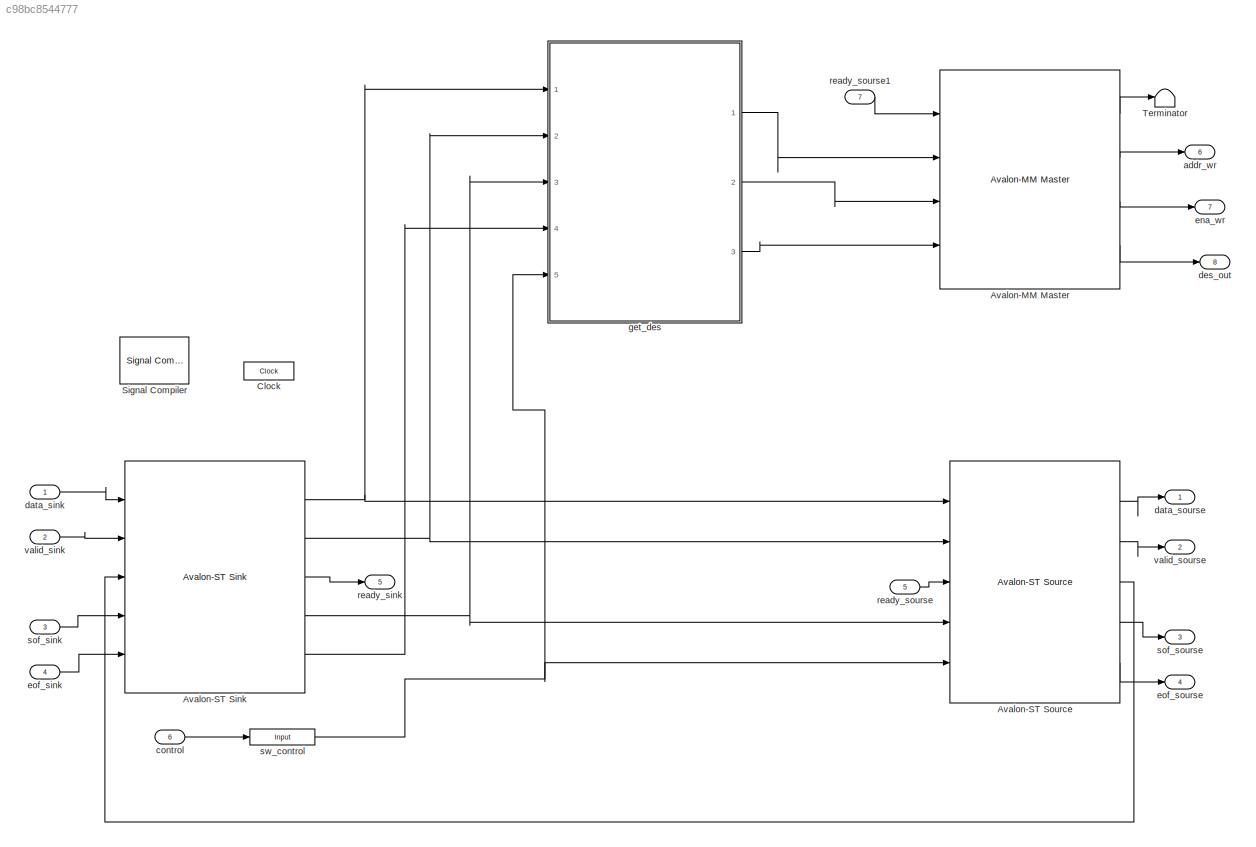
MODEL slx_c98bc8544777
KIND model
CONFIG AbsTol = auto
CONFIG FixedStep = auto
CONFIG InitFcn = %% DSPBuilder Start\nalt_dspbuilder_update_model(bdroot)\n%% DSPBuilder End\n
CONFIG MaxStep = auto
CONFIG MinStep = auto
CONFIG RelTol = 1e-3
CONFIG SampleTimeConstraint = Unconstrained
CONFIG Solver = ode45
CONFIG SolverMode = Auto
CONFIG SolverName = ode45
CONFIG StartTime = 0.0
CONFIG StopTime = 10.0
BLOCK [Reference] Avalon-MM Master  REF=allblocks_alteradspbuilder2/Avalon-MM Master
  BusType = Unsigned Integer
  PORTTYPE = Input
  Ports = [4, 4]
  SourceBlock = allblocks_alteradspbuilder2/Avalon-MM Master
  SourceType = Avalon-MM Master AlteraBlockset
  SpecifyClock = off
  addrType = Write
  addrWidth = 32
  burst = off
  bwl = 32
  bwr = 0
  byteEnable = off
  externalType = Inferred
  flowCtrl = off
  flush = off
  iofile = <userpath>\Desktop\final_sift_fpga\tb_get_descriptor\get%5Fdescriptor_Avalon-MM+Master_waitrequest.salt,<userpath>\Desktop\final_sift_fpga\tb_get_descriptor\get%5Fdescriptor_Avalon-MM+Master_address.capture,<userpath>\Desktop\final_sift_fpga\tb_get_descriptor\get%5Fdescriptor_Avalon-MM+Master_write.capture,<userpath>\Desktop\final_sift_fpga\tb_get_descriptor\get%5Fdescriptor_Avalon-MM+Master_write...<+13ch>
  irq = off
  irq_mode = Prioritized
  maxBurst = 4
  pipeline = off
BLOCK [Reference] Avalon-ST Sink  REF=allblocks_alteradspbuilder2/Avalon-ST Sink
  BusType = Unsigned Integer
  PORTTYPE = Output
  Ports = [5, 5]
  SourceBlock = allblocks_alteradspbuilder2/Avalon-ST Sink
  SourceType = Avalon-ST Sink AlteraBlockset
  SpecifyClock = off
  bwl = 24
  bwr = 0
  empty = off
  endOfPacket = on
  externalType = Inferred
  iofile = <userpath>\Desktop\final_sift_fpga\tb_get_descriptor\get%5Fdescriptor_Avalon-ST+Sink_data.salt,<userpath>\Desktop\final_sift_fpga\tb_get_descriptor\get%5Fdescriptor_Avalon-ST+Sink_valid.salt,<userpath>\Desktop\final_sift_fpga\tb_get_descriptor\get%5Fdescriptor_Avalon-ST+Sink_ready.capture,<userpath>\Desktop\final_sift_fpga\tb_get_descriptor\get%5Fdescriptor_Avalon-ST+Sink_startofpacket.salt,<userp...<+96ch>
  numOfChannels = 0
  numOfErrorDescriptors = 0
  readyLatency = 1
  startOfPacket = on
  symbolWidth = 8
  symbolsPerBeat = 3
BLOCK [Reference] Avalon-ST Source  REF=allblocks_alteradspbuilder2/Avalon-ST Source
  BusType = Unsigned Integer
  PORTTYPE = Input
  Ports = [5, 5]
  SourceBlock = allblocks_alteradspbuilder2/Avalon-ST Source
  SourceType = Avalon-ST Source AlteraBlockset
  SpecifyClock = off
  bwl = 24
  bwr = 0
  empty = off
  endOfPacket = on
  externalType = Inferred
  iofile = <userpath>\Desktop\final_sift_fpga\tb_get_descriptor\get%5Fdescriptor_Avalon-ST+Source_data.capture,<userpath>\Desktop\final_sift_fpga\tb_get_descriptor\get%5Fdescriptor_Avalon-ST+Source_valid.capture,<userpath>\Desktop\final_sift_fpga\tb_get_descriptor\get%5Fdescriptor_Avalon-ST+Source_ready.salt,<userpath>\Desktop\final_sift_fpga\tb_get_descriptor\get%5Fdescriptor_Avalon-ST+Source_startofpacket....<+115ch>
  numOfChannels = 0
  numOfErrorDescriptors = 0
  readyLatency = 1
  startOfPacket = on
  symbolWidth = 8
  symbolsPerBeat = 3
BLOCK [Reference] Clock  REF=allblocks_alteradspbuilder2/Clock
  ClockPeriod = 10/1.5
  ClockPeriodUnit = ns
  Export = off
  PhaseOffset = 0
  Ports = []
  Reset = aclr
  ResetLatency = 0
  ResetRegisterCascadeDepth = 0
  ResetType = Active Low
  SampleTime = 1
  SimulationStartCycle = 5
  SourceBlock = allblocks_alteradspbuilder2/Clock
  SourceType = BaseClock AlteraBlockset
BLOCK [Reference] Signal Compiler  REF=allblocks_alteradspbuilder2/Signal Compiler
  DeviceFamily = Cyclone IV GX
  DeviceName = AUTO
  DisableEarlyHDLGeneration = off
  EnableSignalTap = off
  ExportDir = <path>\quartus\dsp_builder
  MAX10_ProgrammingMode = Internal Flash (SDM) Single Boot
  Ports = []
  SignalTapDepth = 128
  SourceBlock = allblocks_alteradspbuilder2/Signal Compiler
  SourceType = Signal Compiler AlteraBlockset
  StpClock = Clock
  StpUseDefaultClock = on
  UseBoardBlock = off
BLOCK [Terminator] Terminator
BLOCK [Outport] addr_wr
  IconDisplay = Port number
  Port = 6
BLOCK [Inport] control
  IconDisplay = Port number
  Port = 6
BLOCK [Inport] data_sink
  IconDisplay = Port number
BLOCK [Outport] data_sourse
  IconDisplay = Port number
BLOCK [Outport] des_out
  IconDisplay = Port number
  Port = 8
BLOCK [Outport] ena_wr
  IconDisplay = Port number
  Port = 7
BLOCK [Inport] eof_sink
  IconDisplay = Port number
  Port = 4
BLOCK [Outport] eof_sourse
  IconDisplay = Port number
  Port = 4
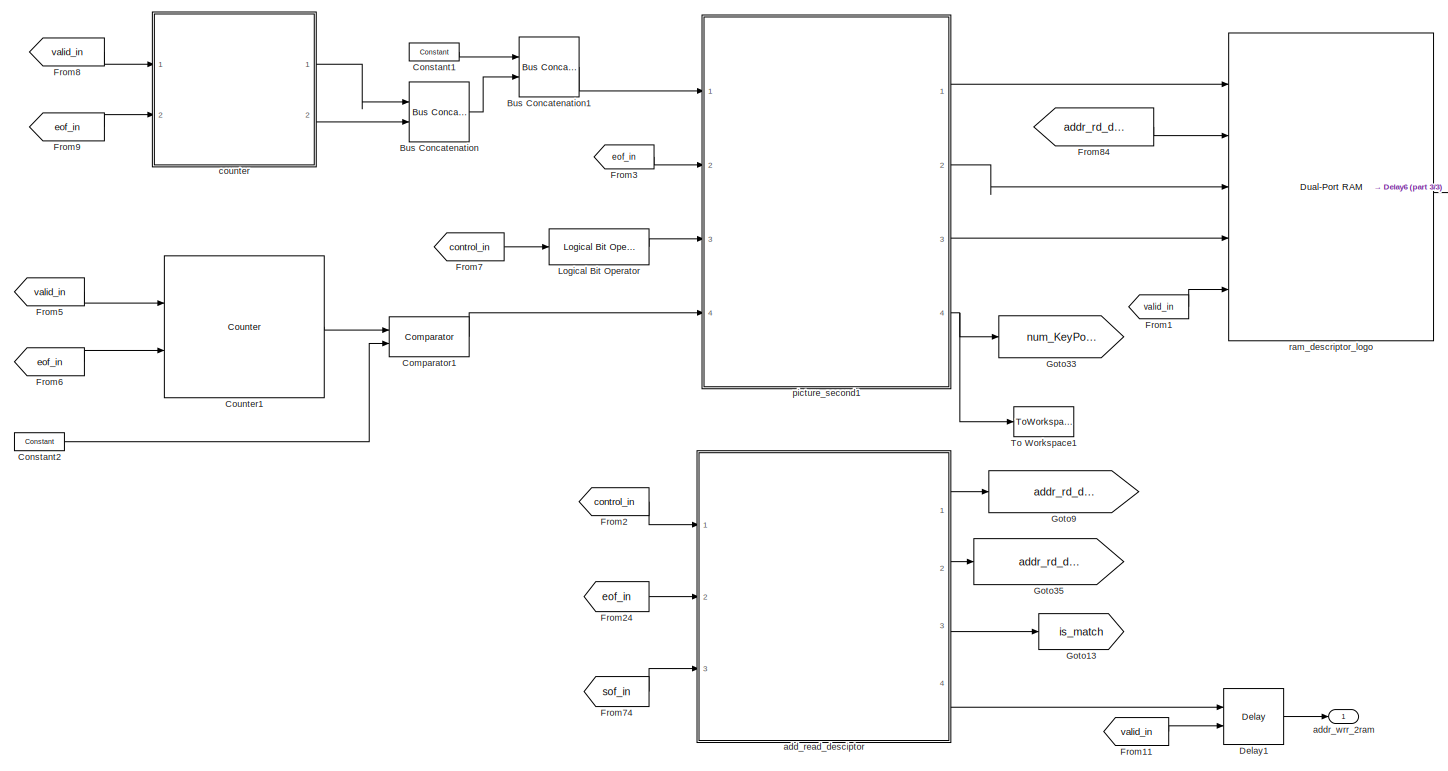
[diagram: get_des - part 1/3, center side, full height]
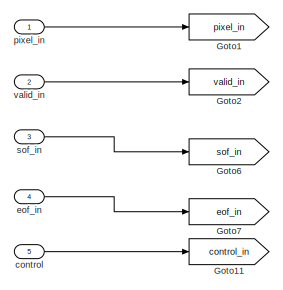
[diagram: get_des - part 2/3, top left region]
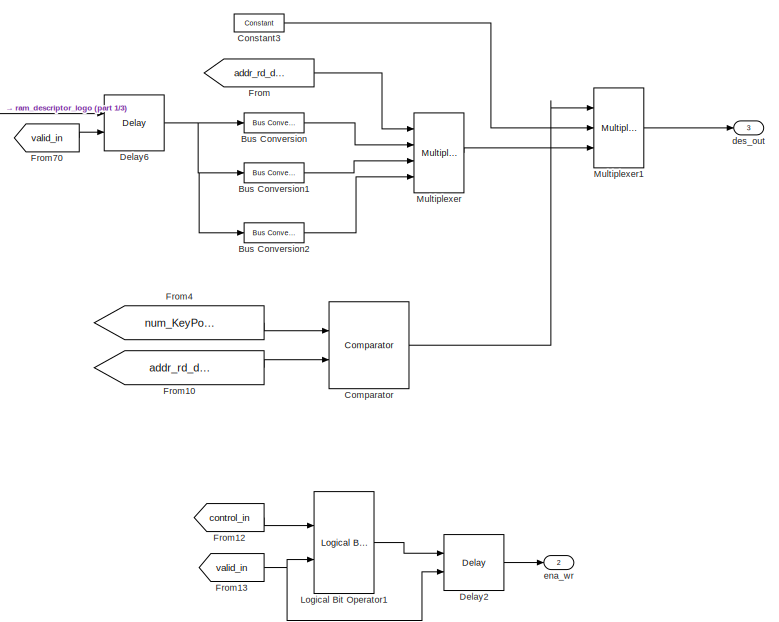
[diagram: get_des - part 3/3, right side, full height]
BLOCK [SubSystem] get_des
  Ports = [5, 3]
  RequestExecContextInheritance = off
BLOCK [Reference] get_des/Bus Concatenation  REF=allblocks_alteradspbuilder2/Bus Concatenation
  Ports = [2, 1]
  SourceBlock = allblocks_alteradspbuilder2/Bus Concatenation
  SourceType = Bus Concatenate AlteraBlockset
  awidth = 32
  bwidth = 32
  isSigned = off
  pipeline_display = 0
BLOCK [Reference] get_des/Bus Concatenation1  REF=allblocks_alteradspbuilder2/Bus Concatenation
  Ports = [2, 1]
  SourceBlock = allblocks_alteradspbuilder2/Bus Concatenation
  SourceType = Bus Concatenate AlteraBlockset
  awidth = 32
  bwidth = 64
  isSigned = off
  pipeline_display = 0
BLOCK [Reference] get_des/Bus Conversion  REF=allblocks_alteradspbuilder2/Bus Conversion
  BusType = Unsigned Integer
  Ports = [1, 1]
  SourceBlock = allblocks_alteradspbuilder2/Bus Conversion
  SourceType = Bus Conversion AlteraBlockset
  bitToConnectToOutputLSB = 64
  bwl = 32
  bwr = 1
  ibwl = 96
  ibwr = 1
  pipeline_display = 0
  round = off
  saturate = off
BLOCK [Reference] get_des/Bus Conversion1  REF=allblocks_alteradspbuilder2/Bus Conversion
  BusType = Unsigned Integer
  Ports = [1, 1]
  SourceBlock = allblocks_alteradspbuilder2/Bus Conversion
  SourceType = Bus Conversion AlteraBlockset
  bitToConnectToOutputLSB = 32
  bwl = 32
  bwr = 1
  ibwl = 96
  ibwr = 1
  pipeline_display = 0
  round = off
  saturate = off
BLOCK [Reference] get_des/Bus Conversion2  REF=allblocks_alteradspbuilder2/Bus Conversion
  BusType = Unsigned Integer
  Ports = [1, 1]
  SourceBlock = allblocks_alteradspbuilder2/Bus Conversion
  SourceType = Bus Conversion AlteraBlockset
  bitToConnectToOutputLSB = 0
  bwl = 32
  bwr = 1
  ibwl = 96
  ibwr = 1
  pipeline_display = 0
  round = off
  saturate = off
BLOCK [Reference] get_des/Comparator  REF=allblocks_alteradspbuilder2/Comparator
  Ports = [2, 1]
  SourceBlock = allblocks_alteradspbuilder2/Comparator
  SourceType = Comparator AlteraBlockset
  allowFloatingPointOverride = on
  direction = a >= b
  logFile = <userpath>\Desktop\final_sift_fpga\tb_get_descriptor\get%5Fdescriptor_get%5Fdes_Comparator.fixedpointlog
  logOutputs = off
  pipeline_display = 0
BLOCK [Reference] get_des/Comparator1  REF=allblocks_alteradspbuilder2/Comparator
  Ports = [2, 1]
  SourceBlock = allblocks_alteradspbuilder2/Comparator
  SourceType = Comparator AlteraBlockset
  allowFloatingPointOverride = on
  direction = a == b
  logFile = <userpath>\Desktop\final_sift_fpga\tb_get_descriptor\get%5Fdescriptor_get%5Fdes_Comparator1.fixedpointlog
  logOutputs = off
  pipeline_display = 0
BLOCK [Reference] get_des/Constant1  REF=allblocks_alteradspbuilder2/Constant
  BusType = Unsigned Integer
  Ports = [0, 1]
  SourceBlock = allblocks_alteradspbuilder2/Constant
  SourceType = Constant AlteraBlockset
  SpecifyClock = off
  allowFloatingPointOverride = on
  bwl = 32
  bwr = 0
  logFile = <userpath>\Desktop\final_sift_fpga\tb_get_descriptor\get%5Fdescriptor_get%5Fdes_Constant1.fixedpointlog
  logOutputs = off
  mask_cst = 1998
  roundMode = Truncate
  satMode = Wrap
BLOCK [Reference] get_des/Constant2  REF=allblocks_alteradspbuilder2/Constant
  BusType = Unsigned Integer
  Ports = [0, 1]
  SourceBlock = allblocks_alteradspbuilder2/Constant
  SourceType = Constant AlteraBlockset
  SpecifyClock = off
  allowFloatingPointOverride = on
  bwl = 20
  bwr = 0
  logFile = <userpath>\Desktop\final_sift_fpga\tb_get_descriptor\get%5Fdescriptor_get%5Fdes_Constant2.fixedpointlog
  logOutputs = off
  mask_cst = 9999
  roundMode = Truncate
  satMode = Wrap
BLOCK [Reference] get_des/Constant3  REF=allblocks_alteradspbuilder2/Constant
  BusType = Unsigned Integer
  Ports = [0, 1]
  SourceBlock = allblocks_alteradspbuilder2/Constant
  SourceType = Constant AlteraBlockset
  SpecifyClock = off
  allowFloatingPointOverride = on
  bwl = 32
  bwr = 0
  logFile = <userpath>\Desktop\final_sift_fpga\tb_get_descriptor\get%5Fdescriptor_get%5Fdes_Constant3.fixedpointlog
  logOutputs = off
  mask_cst = 0
  roundMode = Truncate
  satMode = Wrap
BLOCK [Reference] get_des/Counter1  REF=allblocks_alteradspbuilder2/Counter
  BusType = Unsigned Integer
  Ports = [2, 1]
  SourceBlock = allblocks_alteradspbuilder2/Counter
  SourceType = Counter AlteraBlockset
  SpecifyClock = off
  bwl = 20
  bwr = 0
  direction = Increment
  modulo = 10000
  pipeline_display = 1
  svalue = 1
  use_clk_ena = off
  use_ena = on
  use_modulo = on
  use_sclr = on
  use_sload = off
  use_sset = off
BLOCK [Reference] get_des/Delay1  REF=allblocks_alteradspbuilder2/Delay
  ClockPhase = 1
  Ports = [2, 1]
  SourceBlock = allblocks_alteradspbuilder2/Delay
  SourceType = Delay AlteraBlockset
  allowFloatingPointOverride = on
  logFile = <userpath>\Desktop\final_sift_fpga\tb_get_descriptor\get%5Fdescriptor_get%5Fdes_Delay1.fixedpointlog
  logOutputs = off
  pipeline = 3
  pipeline_display = 3
  reset_value = 1
  use_ena = on
  use_init = off
  use_sclr = off
BLOCK [Reference] get_des/Delay2  REF=allblocks_alteradspbuilder2/Delay
  ClockPhase = 1
  Ports = [2, 1]
  SourceBlock = allblocks_alteradspbuilder2/Delay
  SourceType = Delay AlteraBlockset
  allowFloatingPointOverride = on
  logFile = <userpath>\Desktop\final_sift_fpga\tb_get_descriptor\get%5Fdescriptor_get%5Fdes_Delay2.fixedpointlog
  logOutputs = off
  pipeline = 3
  pipeline_display = 3
  reset_value = 1
  use_ena = on
  use_init = off
  use_sclr = off
BLOCK [Reference] get_des/Delay6  REF=allblocks_alteradspbuilder2/Delay
  ClockPhase = 1
  Ports = [2, 1]
  SourceBlock = allblocks_alteradspbuilder2/Delay
  SourceType = Delay AlteraBlockset
  allowFloatingPointOverride = on
  logFile = <userpath>\Desktop\final_sift_fpga\tb_get_descriptor\get%5Fdescriptor_get%5Fdes_Delay6.fixedpointlog
  logOutputs = off
  pipeline = 1
  pipeline_display = 1
  reset_value = 1
  use_ena = on
  use_init = off
  use_sclr = off
BLOCK [From] get_des/From
  GotoTag = addr_rd_des_logo
BLOCK [From] get_des/From1
  GotoTag = valid_in
BLOCK [From] get_des/From10
  GotoTag = addr_rd_des
BLOCK [From] get_des/From11
  GotoTag = valid_in
BLOCK [From] get_des/From12
  GotoTag = control_in
BLOCK [From] get_des/From13
  GotoTag = valid_in
BLOCK [From] get_des/From2
  GotoTag = control_in
BLOCK [From] get_des/From24
  GotoTag = eof_in
BLOCK [From] get_des/From3
  GotoTag = eof_in
BLOCK [From] get_des/From4
  GotoTag = num_KeyPoint_logo
BLOCK [From] get_des/From5
  GotoTag = valid_in
BLOCK [From] get_des/From6
  GotoTag = eof_in
BLOCK [From] get_des/From7
  GotoTag = control_in
BLOCK [From] get_des/From70
  GotoTag = valid_in
BLOCK [From] get_des/From74
  GotoTag = sof_in
BLOCK [From] get_des/From8
  GotoTag = valid_in
BLOCK [From] get_des/From84
  GotoTag = addr_rd_des
BLOCK [From] get_des/From9
  GotoTag = eof_in
BLOCK [Goto] get_des/Goto1
  GotoTag = pixel_in
BLOCK [Goto] get_des/Goto11
  GotoTag = control_in
BLOCK [Goto] get_des/Goto13
  GotoTag = is_match
BLOCK [Goto] get_des/Goto2
  GotoTag = valid_in
BLOCK [Goto] get_des/Goto33
  GotoTag = num_KeyPoint_logo
BLOCK [Goto] get_des/Goto35
  GotoTag = addr_rd_des_logo
BLOCK [Goto] get_des/Goto6
  GotoTag = sof_in
BLOCK [Goto] get_des/Goto7
  GotoTag = eof_in
BLOCK [Goto] get_des/Goto9
  GotoTag = addr_rd_des
BLOCK [Reference] get_des/Logical Bit Operator  REF=allblocks_alteradspbuilder2/Logical Bit Operator
  LogicalOperator = NOT
  Ports = [1, 1]
  SourceBlock = allblocks_alteradspbuilder2/Logical Bit Operator
  SourceType = Logical Bit Operator AlteraBlockset
  pipeline_display = 0
  user_inputs = 2
BLOCK [Reference] get_des/Logical Bit Operator1  REF=allblocks_alteradspbuilder2/Logical Bit Operator
  LogicalOperator = AND
  Ports = [2, 1]
  SourceBlock = allblocks_alteradspbuilder2/Logical Bit Operator
  SourceType = Logical Bit Operator AlteraBlockset
  pipeline_display = 0
  user_inputs = 2
BLOCK [Reference] get_des/Multiplexer  REF=allblocks_alteradspbuilder2/Multiplexer
  Ports = [4, 1]
  SourceBlock = allblocks_alteradspbuilder2/Multiplexer
  SourceType = Multiplexer AlteraBlockset
  allowFloatingPointOverride = on
  logFile = <userpath>\Desktop\final_sift_fpga\tb_get_descriptor\get%5Fdescriptor_get%5Fdes_Multiplexer.fixedpointlog
  logOutputs = off
  numInputs = 3
  oneHot = off
  pipeline = 0
  pipeline_display = 0
  use_aclr = off
  use_ena = off
BLOCK [Reference] get_des/Multiplexer1  REF=allblocks_alteradspbuilder2/Multiplexer
  Ports = [3, 1]
  SourceBlock = allblocks_alteradspbuilder2/Multiplexer
  SourceType = Multiplexer AlteraBlockset
  allowFloatingPointOverride = on
  logFile = <userpath>\Desktop\final_sift_fpga\tb_get_descriptor\get%5Fdescriptor_get%5Fdes_Multiplexer1.fixedpointlog
  logOutputs = off
  numInputs = 2
  oneHot = off
  pipeline = 0
  pipeline_display = 0
  use_aclr = off
  use_ena = off
BLOCK [ToWorkspace] get_des/To Workspace1
  FixptAsFi = on
  MaxDataPoints = inf
  Ports = [1]
  SampleTime = -1
  Save2DSignal = 3-D array (concatenate along third dimension)
  SaveFormat = Timeseries
  VariableName = num_keypoint
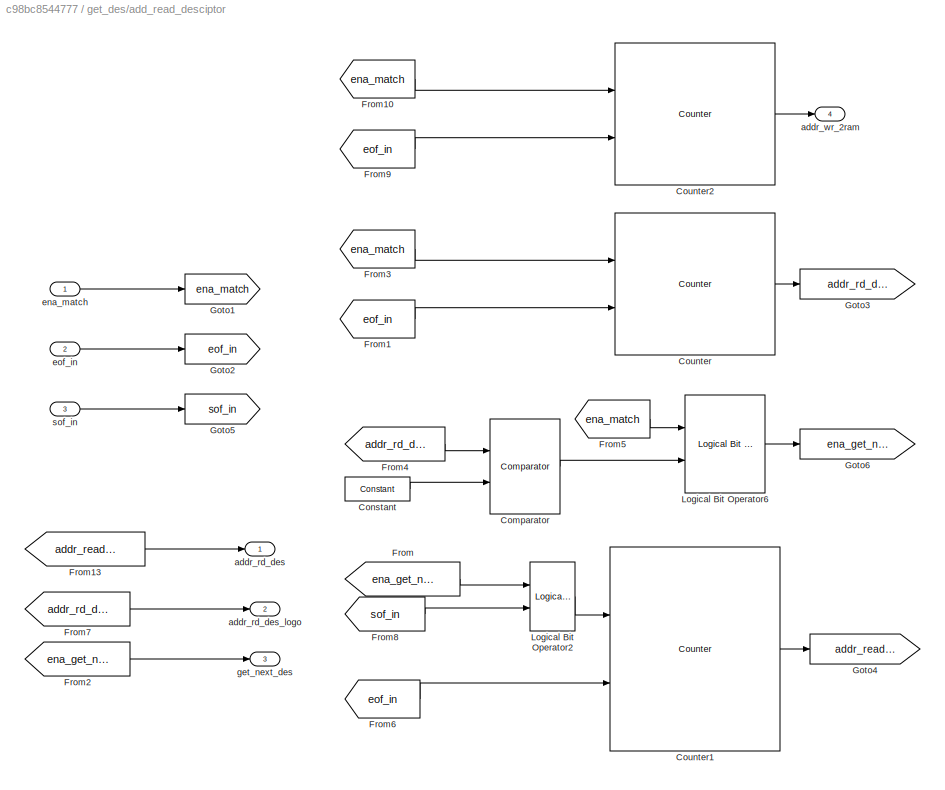
BLOCK [SubSystem] get_des/add_read_desciptor
  Ports = [3, 4]
  RequestExecContextInheritance = off
BLOCK [Reference] get_des/add_read_desciptor/Comparator  REF=allblocks_alteradspbuilder2/Comparator
  Ports = [2, 1]
  SourceBlock = allblocks_alteradspbuilder2/Comparator
  SourceType = Comparator AlteraBlockset
  allowFloatingPointOverride = on
  direction = a == b
  logFile = <userpath>\Desktop\final_sift_fpga\tb_get_descriptor\get%5Fdescriptor_get%5Fdes_add%5Fread%5Fdesciptor_Comparator.fixedpointlog
  logOutputs = off
  pipeline_display = 0
BLOCK [Reference] get_des/add_read_desciptor/Constant  REF=allblocks_alteradspbuilder2/Constant
  BusType = Unsigned Integer
  Ports = [0, 1]
  SourceBlock = allblocks_alteradspbuilder2/Constant
  SourceType = Constant AlteraBlockset
  SpecifyClock = off
  allowFloatingPointOverride = on
  bwl = 2
  bwr = 0
  logFile = <userpath>\Desktop\final_sift_fpga\tb_get_descriptor\get%5Fdescriptor_get%5Fdes_add%5Fread%5Fdesciptor_Constant.fixedpointlog
  logOutputs = off
  mask_cst = 2
  roundMode = Truncate
  satMode = Wrap
BLOCK [Reference] get_des/add_read_desciptor/Counter  REF=allblocks_alteradspbuilder2/Counter
  BusType = Unsigned Integer
  Ports = [2, 1]
  SourceBlock = allblocks_alteradspbuilder2/Counter
  SourceType = Counter AlteraBlockset
  SpecifyClock = off
  bwl = 2
  bwr = 0
  direction = Increment
  modulo = 3
  pipeline_display = 1
  svalue = 1
  use_clk_ena = off
  use_ena = on
  use_modulo = on
  use_sclr = on
  use_sload = off
  use_sset = off
BLOCK [Reference] get_des/add_read_desciptor/Counter1  REF=allblocks_alteradspbuilder2/Counter
  BusType = Unsigned Integer
  Ports = [2, 1]
  SourceBlock = allblocks_alteradspbuilder2/Counter
  SourceType = Counter AlteraBlockset
  SpecifyClock = off
  bwl = 7
  bwr = 0
  direction = Increment
  modulo = 100
  pipeline_display = 1
  svalue = 0
  use_clk_ena = off
  use_ena = on
  use_modulo = on
  use_sclr = on
  use_sload = off
  use_sset = off
BLOCK [Reference] get_des/add_read_desciptor/Counter2  REF=allblocks_alteradspbuilder2/Counter
  BusType = Unsigned Integer
  Ports = [2, 1]
  SourceBlock = allblocks_alteradspbuilder2/Counter
  SourceType = Counter AlteraBlockset
  SpecifyClock = off
  bwl = 9
  bwr = 0
  direction = Increment
  modulo = 300
  pipeline_display = 1
  svalue = 1
  use_clk_ena = off
  use_ena = on
  use_modulo = on
  use_sclr = on
  use_sload = off
  use_sset = off
BLOCK [From] get_des/add_read_desciptor/From
  GotoTag = ena_get_next_addr
BLOCK [From] get_des/add_read_desciptor/From1
  GotoTag = eof_in
BLOCK [From] get_des/add_read_desciptor/From10
  GotoTag = ena_match
BLOCK [From] get_des/add_read_desciptor/From13
  GotoTag = addr_read_des
BLOCK [From] get_des/add_read_desciptor/From2
  GotoTag = ena_get_next_addr
BLOCK [From] get_des/add_read_desciptor/From3
  GotoTag = ena_match
BLOCK [From] get_des/add_read_desciptor/From4
  GotoTag = addr_rd_des_logo
BLOCK [From] get_des/add_read_desciptor/From5
  GotoTag = ena_match
BLOCK [From] get_des/add_read_desciptor/From6
  GotoTag = eof_in
BLOCK [From] get_des/add_read_desciptor/From7
  GotoTag = addr_rd_des_logo
BLOCK [From] get_des/add_read_desciptor/From8
  GotoTag = sof_in
BLOCK [From] get_des/add_read_desciptor/From9
  GotoTag = eof_in
BLOCK [Goto] get_des/add_read_desciptor/Goto1
  GotoTag = ena_match
BLOCK [Goto] get_des/add_read_desciptor/Goto2
  GotoTag = eof_in
BLOCK [Goto] get_des/add_read_desciptor/Goto3
  GotoTag = addr_rd_des_logo
BLOCK [Goto] get_des/add_read_desciptor/Goto4
  GotoTag = addr_read_des
BLOCK [Goto] get_des/add_read_desciptor/Goto5
  GotoTag = sof_in
BLOCK [Goto] get_des/add_read_desciptor/Goto6
  GotoTag = ena_get_next_addr
BLOCK [Reference] get_des/add_read_desciptor/Logical Bit Operator2  REF=allblocks_alteradspbuilder2/Logical Bit Operator
  LogicalOperator = OR
  Ports = [2, 1]
  SourceBlock = allblocks_alteradspbuilder2/Logical Bit Operator
  SourceType = Logical Bit Operator AlteraBlockset
  pipeline_display = 0
  user_inputs = 2
BLOCK [Reference] get_des/add_read_desciptor/Logical Bit Operator6  REF=allblocks_alteradspbuilder2/Logical Bit Operator
  LogicalOperator = AND
  Ports = [2, 1]
  SourceBlock = allblocks_alteradspbuilder2/Logical Bit Operator
  SourceType = Logical Bit Operator AlteraBlockset
  pipeline_display = 0
  user_inputs = 2
BLOCK [Outport] get_des/add_read_desciptor/addr_rd_des
  IconDisplay = Port number
BLOCK [Outport] get_des/add_read_desciptor/addr_rd_des_logo
  IconDisplay = Port number
  Port = 2
BLOCK [Outport] get_des/add_read_desciptor/addr_wr_2ram
  IconDisplay = Port number
  Port = 4
BLOCK [Inport] get_des/add_read_desciptor/ena_match
  IconDisplay = Port number
BLOCK [Inport] get_des/add_read_desciptor/eof_in
  IconDisplay = Port number
  Port = 2
BLOCK [Outport] get_des/add_read_desciptor/get_next_des
  IconDisplay = Port number
  Port = 3
BLOCK [Inport] get_des/add_read_desciptor/sof_in
  IconDisplay = Port number
  Port = 3
BLOCK [Outport] get_des/addr_wrr_2ram
  IconDisplay = Port number
BLOCK [Inport] get_des/control
  IconDisplay = Port number
  Port = 5
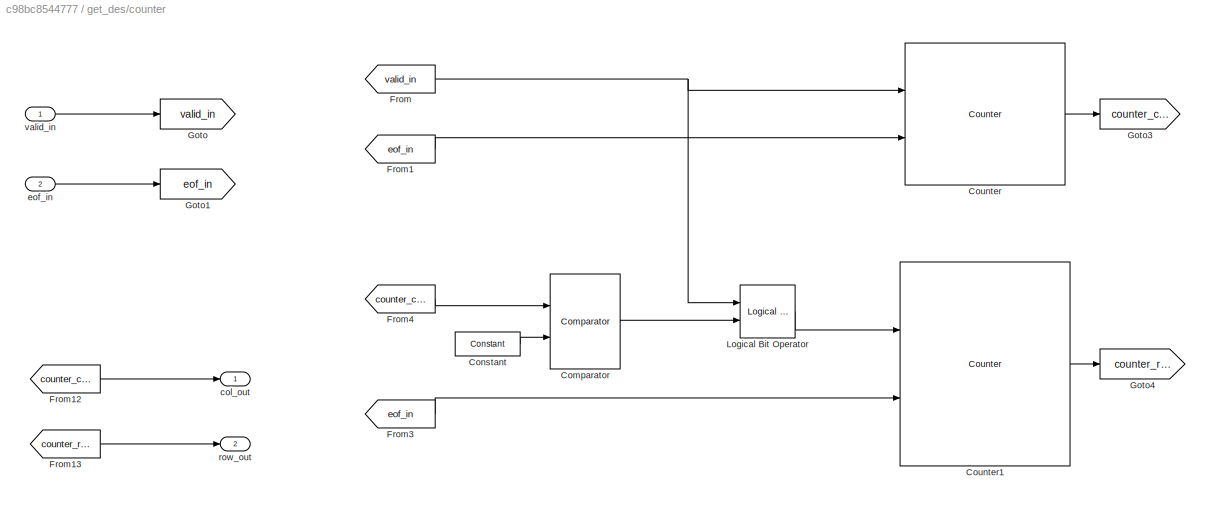
BLOCK [SubSystem] get_des/counter
  Ports = [2, 2]
  RequestExecContextInheritance = off
BLOCK [Reference] get_des/counter/Comparator  REF=allblocks_alteradspbuilder2/Comparator
  Ports = [2, 1]
  SourceBlock = allblocks_alteradspbuilder2/Comparator
  SourceType = Comparator AlteraBlockset
  allowFloatingPointOverride = on
  direction = a == b
  logFile = <userpath>\Desktop\final_sift_fpga\tb_get_descriptor\get%5Fdescriptor_get%5Fdes_counter_Comparator.fixedpointlog
  logOutputs = off
  pipeline_display = 0
BLOCK [Reference] get_des/counter/Constant  REF=allblocks_alteradspbuilder2/Constant
  BusType = Unsigned Integer
  Ports = [0, 1]
  SourceBlock = allblocks_alteradspbuilder2/Constant
  SourceType = Constant AlteraBlockset
  SpecifyClock = off
  allowFloatingPointOverride = on
  bwl = 10
  bwr = 0
  logFile = <userpath>\Desktop\final_sift_fpga\tb_get_descriptor\get%5Fdescriptor_get%5Fdes_counter_Constant.fixedpointlog
  logOutputs = off
  mask_cst = 639
  roundMode = Truncate
  satMode = Wrap
BLOCK [Reference] get_des/counter/Counter  REF=allblocks_alteradspbuilder2/Counter
  BusType = Unsigned Integer
  Ports = [2, 1]
  SourceBlock = allblocks_alteradspbuilder2/Counter
  SourceType = Counter AlteraBlockset
  SpecifyClock = off
  bwl = 10
  bwr = 0
  direction = Increment
  modulo = 640
  pipeline_display = 1
  svalue = 1
  use_clk_ena = off
  use_ena = on
  use_modulo = on
  use_sclr = on
  use_sload = off
  use_sset = off
BLOCK [Reference] get_des/counter/Counter1  REF=allblocks_alteradspbuilder2/Counter
  BusType = Unsigned Integer
  Ports = [2, 1]
  SourceBlock = allblocks_alteradspbuilder2/Counter
  SourceType = Counter AlteraBlockset
  SpecifyClock = off
  bwl = 10
  bwr = 0
  direction = Increment
  modulo = 480
  pipeline_display = 1
  svalue = 0
  use_clk_ena = off
  use_ena = on
  use_modulo = on
  use_sclr = on
  use_sload = off
  use_sset = off
BLOCK [From] get_des/counter/From
  GotoTag = valid_in
BLOCK [From] get_des/counter/From1
  GotoTag = eof_in
BLOCK [From] get_des/counter/From12
  GotoTag = counter_col
BLOCK [From] get_des/counter/From13
  GotoTag = counter_row
BLOCK [From] get_des/counter/From3
  GotoTag = eof_in
BLOCK [From] get_des/counter/From4
  GotoTag = counter_col
BLOCK [Goto] get_des/counter/Goto
  GotoTag = valid_in
BLOCK [Goto] get_des/counter/Goto1
  GotoTag = eof_in
BLOCK [Goto] get_des/counter/Goto3
  GotoTag = counter_col
BLOCK [Goto] get_des/counter/Goto4
  GotoTag = counter_row
BLOCK [Reference] get_des/counter/Logical Bit Operator  REF=allblocks_alteradspbuilder2/Logical Bit Operator
  LogicalOperator = AND
  Ports = [2, 1]
  SourceBlock = allblocks_alteradspbuilder2/Logical Bit Operator
  SourceType = Logical Bit Operator AlteraBlockset
  pipeline_display = 0
  user_inputs = 2
BLOCK [Outport] get_des/counter/col_out
  IconDisplay = Port number
BLOCK [Inport] get_des/counter/eof_in
  IconDisplay = Port number
  Port = 2
BLOCK [Outport] get_des/counter/row_out
  IconDisplay = Port number
  Port = 2
BLOCK [Inport] get_des/counter/valid_in
  IconDisplay = Port number
BLOCK [Outport] get_des/des_out
  IconDisplay = Port number
  Port = 3
BLOCK [Outport] get_des/ena_wr
  IconDisplay = Port number
  Port = 2
BLOCK [Inport] get_des/eof_in
  IconDisplay = Port number
  Port = 4
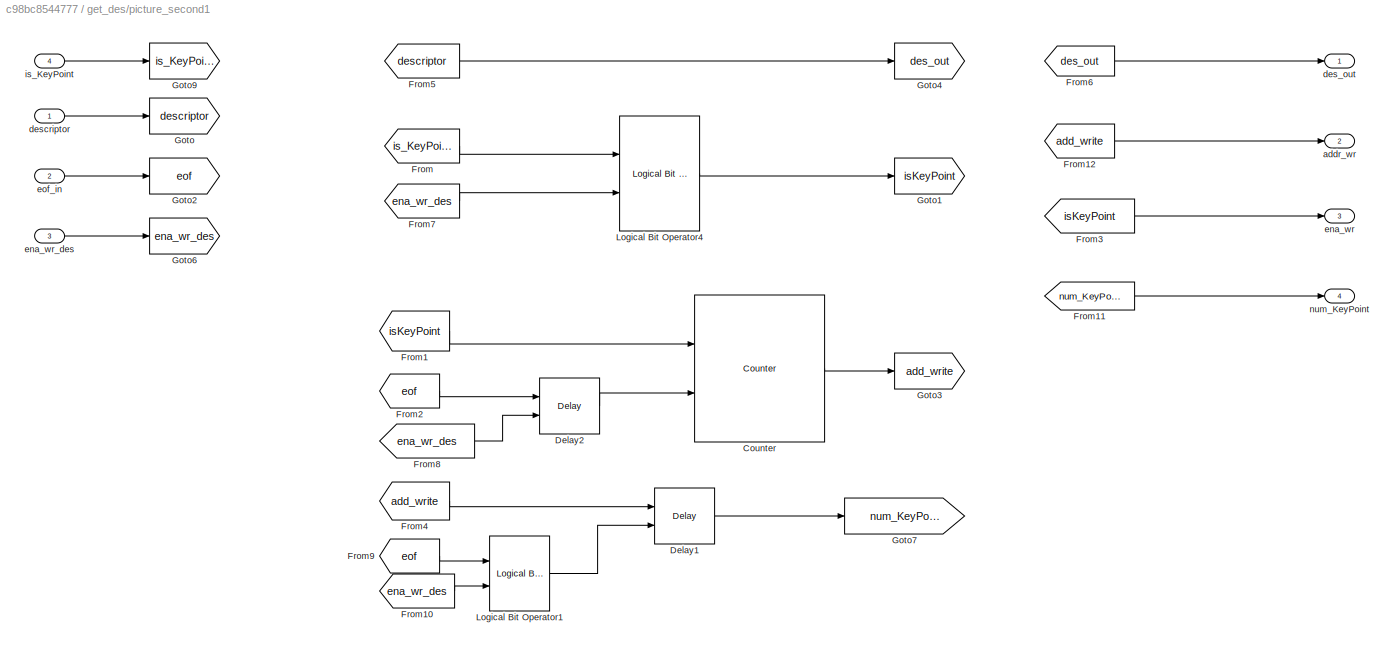
BLOCK [SubSystem] get_des/picture_second1
  Ports = [4, 4]
  RequestExecContextInheritance = off
BLOCK [Reference] get_des/picture_second1/Counter  REF=allblocks_alteradspbuilder2/Counter
  BusType = Unsigned Integer
  Ports = [2, 1]
  SourceBlock = allblocks_alteradspbuilder2/Counter
  SourceType = Counter AlteraBlockset
  SpecifyClock = off
  bwl = 7
  bwr = 0
  direction = Increment
  modulo = 100
  pipeline_display = 1
  svalue = 1
  use_clk_ena = off
  use_ena = on
  use_modulo = on
  use_sclr = on
  use_sload = off
  use_sset = off
BLOCK [Reference] get_des/picture_second1/Delay1  REF=allblocks_alteradspbuilder2/Delay
  ClockPhase = 1
  Ports = [2, 1]
  SourceBlock = allblocks_alteradspbuilder2/Delay
  SourceType = Delay AlteraBlockset
  allowFloatingPointOverride = on
  logFile = <userpath>\Desktop\final_sift_fpga\tb_get_descriptor\get%5Fdescriptor_get%5Fdes_picture%5Fsecond1_Delay1.fixedpointlog
  logOutputs = off
  pipeline = 1
  pipeline_display = 1
  reset_value = 1
  use_ena = on
  use_init = off
  use_sclr = off
BLOCK [Reference] get_des/picture_second1/Delay2  REF=allblocks_alteradspbuilder2/Delay
  ClockPhase = 1
  Ports = [2, 1]
  SourceBlock = allblocks_alteradspbuilder2/Delay
  SourceType = Delay AlteraBlockset
  allowFloatingPointOverride = on
  logFile = <userpath>\Desktop\final_sift_fpga\tb_get_descriptor\get%5Fdescriptor_get%5Fdes_picture%5Fsecond1_Delay2.fixedpointlog
  logOutputs = off
  pipeline = 5
  pipeline_display = 5
  reset_value = 1
  use_ena = on
  use_init = off
  use_sclr = off
BLOCK [From] get_des/picture_second1/From
  GotoTag = is_KeyPoint
BLOCK [From] get_des/picture_second1/From1
  GotoTag = isKeyPoint
BLOCK [From] get_des/picture_second1/From10
  GotoTag = ena_wr_des
BLOCK [From] get_des/picture_second1/From11
  GotoTag = num_KeyPoint
BLOCK [From] get_des/picture_second1/From12
  GotoTag = add_write
BLOCK [From] get_des/picture_second1/From2
  GotoTag = eof
BLOCK [From] get_des/picture_second1/From3
  GotoTag = isKeyPoint
BLOCK [From] get_des/picture_second1/From4
  GotoTag = add_write
BLOCK [From] get_des/picture_second1/From5
  GotoTag = descriptor
BLOCK [From] get_des/picture_second1/From6
  GotoTag = des_out
BLOCK [From] get_des/picture_second1/From7
  GotoTag = ena_wr_des
BLOCK [From] get_des/picture_second1/From8
  GotoTag = ena_wr_des
BLOCK [From] get_des/picture_second1/From9
  GotoTag = eof
BLOCK [Goto] get_des/picture_second1/Goto
  GotoTag = descriptor
BLOCK [Goto] get_des/picture_second1/Goto1
  GotoTag = isKeyPoint
BLOCK [Goto] get_des/picture_second1/Goto2
  GotoTag = eof
BLOCK [Goto] get_des/picture_second1/Goto3
  GotoTag = add_write
BLOCK [Goto] get_des/picture_second1/Goto4
  GotoTag = des_out
BLOCK [Goto] get_des/picture_second1/Goto6
  GotoTag = ena_wr_des
BLOCK [Goto] get_des/picture_second1/Goto7
  GotoTag = num_KeyPoint
BLOCK [Goto] get_des/picture_second1/Goto9
  GotoTag = is_KeyPoint
BLOCK [Reference] get_des/picture_second1/Logical Bit Operator1  REF=allblocks_alteradspbuilder2/Logical Bit Operator
  LogicalOperator = AND
  Ports = [2, 1]
  SourceBlock = allblocks_alteradspbuilder2/Logical Bit Operator
  SourceType = Logical Bit Operator AlteraBlockset
  pipeline_display = 0
  user_inputs = 2
BLOCK [Reference] get_des/picture_second1/Logical Bit Operator4  REF=allblocks_alteradspbuilder2/Logical Bit Operator
  LogicalOperator = AND
  Ports = [2, 1]
  SourceBlock = allblocks_alteradspbuilder2/Logical Bit Operator
  SourceType = Logical Bit Operator AlteraBlockset
  pipeline_display = 0
  user_inputs = 2
BLOCK [Outport] get_des/picture_second1/addr_wr
  IconDisplay = Port number
  Port = 2
BLOCK [Outport] get_des/picture_second1/des_out
  IconDisplay = Port number
BLOCK [Inport] get_des/picture_second1/descriptor
  IconDisplay = Port number
BLOCK [Outport] get_des/picture_second1/ena_wr
  IconDisplay = Port number
  Port = 3
BLOCK [Inport] get_des/picture_second1/ena_wr_des
  IconDisplay = Port number
  Port = 3
BLOCK [Inport] get_des/picture_second1/eof_in
  IconDisplay = Port number
  Port = 2
BLOCK [Inport] get_des/picture_second1/is_KeyPoint
  IconDisplay = Port number
  Port = 4
BLOCK [Outport] get_des/picture_second1/num_KeyPoint
  IconDisplay = Port number
  Port = 4
BLOCK [Inport] get_des/pixel_in
  IconDisplay = Port number
BLOCK [Reference] get_des/ram_descriptor_logo  REF=allblocks_alteradspbuilder2/Dual-Port RAM
  BusType = Unsigned Integer
  ClockPhase = 1
  Ports = [5, 1]
  SourceBlock = allblocks_alteradspbuilder2/Dual-Port RAM
  SourceType = Dual-Port RAM AlteraBlockset
  allowFloatingPointOverride = on
  bwl = 96
  bwr = 0
  dont_care = on
  init_array = [0:1:15]
  init_file = input.hex
  initialization = Blank
  logFile = <userpath>\Desktop\final_sift_fpga\tb_get_descriptor\get%5Fdescriptor_get%5Fdes_ram%5Fdescriptor%5Flogo.fixedpointlog
  logOutputs = off
  memory_type = AUTO
  numwords = 100
  pipeline_display = 2
  ram_type = DualRAM
  register_outputs = on
  use_ena = on
BLOCK [Inport] get_des/sof_in
  IconDisplay = Port number
  Port = 3
BLOCK [Inport] get_des/valid_in
  IconDisplay = Port number
  Port = 2
BLOCK [Outport] ready_sink
  IconDisplay = Port number
  Port = 5
BLOCK [Inport] ready_sourse
  IconDisplay = Port number
  Port = 5
BLOCK [Inport] ready_sourse1
  IconDisplay = Port number
  Port = 7
BLOCK [Inport] sof_sink
  IconDisplay = Port number
  Port = 3
BLOCK [Outport] sof_sourse
  IconDisplay = Port number
  Port = 3
BLOCK [Reference] sw_control  REF=allblocks_alteradspbuilder2/Input
  BusType = Unsigned Integer
  PORTTYPE = Input
  Ports = [1, 1]
  SourceBlock = allblocks_alteradspbuilder2/Input
  SourceType = Input AlteraBlockset
  SpecifyClock = off
  allowFloatingPointOverride = on
  bwl = 18
  bwr = 0
  externalType = Inferred
  iofile = <userpath>\Desktop\final_sift_fpga\tb_get_descriptor\get%5Fdescriptor_sw%5Fcontrol.salt
  logOutputs = off
BLOCK [Inport] valid_sink
  IconDisplay = Port number
  Port = 2
BLOCK [Outport] valid_sourse
  IconDisplay = Port number
  Port = 2
LINE Avalon-MM Master:1 -> Terminator:1
LINE Avalon-MM Master:2 -> addr_wr:1
LINE Avalon-MM Master:3 -> ena_wr:1
LINE Avalon-MM Master:4 -> des_out:1
NET Avalon-ST Sink:1 -> Avalon-ST Source:1, get_des:1
NET Avalon-ST Sink:2 -> Avalon-ST Source:2, get_des:2
LINE Avalon-ST Sink:3 -> ready_sink:1
NET Avalon-ST Sink:4 -> Avalon-ST Source:4, get_des:3
LINE Avalon-ST Sink:5 -> get_des:4
LINE Avalon-ST Source:1 -> data_sourse:1
LINE Avalon-ST Source:2 -> valid_sourse:1
LINE Avalon-ST Source:3 -> Avalon-ST Sink:3
LINE Avalon-ST Source:4 -> sof_sourse:1
LINE Avalon-ST Source:5 -> eof_sourse:1
LINE control:1 -> sw_control:1
LINE data_sink:1 -> Avalon-ST Sink:1
LINE eof_sink:1 -> Avalon-ST Sink:5
LINE get_des/Bus Concatenation1:1 -> get_des/picture_second1:1
LINE get_des/Bus Concatenation:1 -> get_des/Bus Concatenation1:2
LINE get_des/Bus Conversion1:1 -> get_des/Multiplexer:3
LINE get_des/Bus Conversion2:1 -> get_des/Multiplexer:4
LINE get_des/Bus Conversion:1 -> get_des/Multiplexer:2
LINE get_des/Comparator1:1 -> get_des/picture_second1:4
LINE get_des/Comparator:1 -> get_des/Multiplexer1:1
LINE get_des/Constant1:1 -> get_des/Bus Concatenation1:1
LINE get_des/Constant2:1 -> get_des/Comparator1:2
LINE get_des/Constant3:1 -> get_des/Multiplexer1:2
LINE get_des/Counter1:1 -> get_des/Comparator1:1
LINE get_des/Delay1:1 -> get_des/addr_wrr_2ram:1
LINE get_des/Delay2:1 -> get_des/ena_wr:1
NET get_des/Delay6:1 -> get_des/Bus Conversion1:1, get_des/Bus Conversion2:1, get_des/Bus Conversion:1
LINE get_des/From10:1 -> get_des/Comparator:2
LINE get_des/From11:1 -> get_des/Delay1:2
LINE get_des/From12:1 -> get_des/Logical Bit Operator1:1
NET get_des/From13:1 -> get_des/Delay2:2, get_des/Logical Bit Operator1:2
LINE get_des/From1:1 -> get_des/ram_descriptor_logo:5
LINE get_des/From24:1 -> get_des/add_read_desciptor:2
LINE get_des/From2:1 -> get_des/add_read_desciptor:1
LINE get_des/From3:1 -> get_des/picture_second1:2
LINE get_des/From4:1 -> get_des/Comparator:1
LINE get_des/From5:1 -> get_des/Counter1:1
LINE get_des/From6:1 -> get_des/Counter1:2
LINE get_des/From70:1 -> get_des/Delay6:2
LINE get_des/From74:1 -> get_des/add_read_desciptor:3
LINE get_des/From7:1 -> get_des/Logical Bit Operator:1
LINE get_des/From84:1 -> get_des/ram_descriptor_logo:2
LINE get_des/From8:1 -> get_des/counter:1
LINE get_des/From9:1 -> get_des/counter:2
LINE get_des/From:1 -> get_des/Multiplexer:1
LINE get_des/Logical Bit Operator1:1 -> get_des/Delay2:1
LINE get_des/Logical Bit Operator:1 -> get_des/picture_second1:3
LINE get_des/Multiplexer1:1 -> get_des/des_out:1
LINE get_des/Multiplexer:1 -> get_des/Multiplexer1:3
LINE get_des/add_read_desciptor/Comparator:1 -> get_des/add_read_desciptor/Logical Bit Operator6:2
LINE get_des/add_read_desciptor/Constant:1 -> get_des/add_read_desciptor/Comparator:2
LINE get_des/add_read_desciptor/Counter1:1 -> get_des/add_read_desciptor/Goto4:1
LINE get_des/add_read_desciptor/Counter2:1 -> get_des/add_read_desciptor/addr_wr_2ram:1
LINE get_des/add_read_desciptor/Counter:1 -> get_des/add_read_desciptor/Goto3:1
LINE get_des/add_read_desciptor/From10:1 -> get_des/add_read_desciptor/Counter2:1
LINE get_des/add_read_desciptor/From13:1 -> get_des/add_read_desciptor/addr_rd_des:1
LINE get_des/add_read_desciptor/From1:1 -> get_des/add_read_desciptor/Counter:2
LINE get_des/add_read_desciptor/From2:1 -> get_des/add_read_desciptor/get_next_des:1
LINE get_des/add_read_desciptor/From3:1 -> get_des/add_read_desciptor/Counter:1
LINE get_des/add_read_desciptor/From4:1 -> get_des/add_read_desciptor/Comparator:1
LINE get_des/add_read_desciptor/From5:1 -> get_des/add_read_desciptor/Logical Bit Operator6:1
LINE get_des/add_read_desciptor/From6:1 -> get_des/add_read_desciptor/Counter1:2
LINE get_des/add_read_desciptor/From7:1 -> get_des/add_read_desciptor/addr_rd_des_logo:1
LINE get_des/add_read_desciptor/From8:1 -> get_des/add_read_desciptor/Logical Bit Operator2:2
LINE get_des/add_read_desciptor/From9:1 -> get_des/add_read_desciptor/Counter2:2
LINE get_des/add_read_desciptor/From:1 -> get_des/add_read_desciptor/Logical Bit Operator2:1
LINE get_des/add_read_desciptor/Logical Bit Operator2:1 -> get_des/add_read_desciptor/Counter1:1
LINE get_des/add_read_desciptor/Logical Bit Operator6:1 -> get_des/add_read_desciptor/Goto6:1
LINE get_des/add_read_desciptor/ena_match:1 -> get_des/add_read_desciptor/Goto1:1
LINE get_des/add_read_desciptor/eof_in:1 -> get_des/add_read_desciptor/Goto2:1
LINE get_des/add_read_desciptor/sof_in:1 -> get_des/add_read_desciptor/Goto5:1
LINE get_des/add_read_desciptor:1 -> get_des/Goto9:1
LINE get_des/add_read_desciptor:2 -> get_des/Goto35:1
LINE get_des/add_read_desciptor:3 -> get_des/Goto13:1
LINE get_des/add_read_desciptor:4 -> get_des/Delay1:1
LINE get_des/control:1 -> get_des/Goto11:1
LINE get_des/counter/Comparator:1 -> get_des/counter/Logical Bit Operator:2
LINE get_des/counter/Constant:1 -> get_des/counter/Comparator:2
LINE get_des/counter/Counter1:1 -> get_des/counter/Goto4:1
LINE get_des/counter/Counter:1 -> get_des/counter/Goto3:1
LINE get_des/counter/From12:1 -> get_des/counter/col_out:1
LINE get_des/counter/From13:1 -> get_des/counter/row_out:1
LINE get_des/counter/From1:1 -> get_des/counter/Counter:2
LINE get_des/counter/From3:1 -> get_des/counter/Counter1:2
LINE get_des/counter/From4:1 -> get_des/counter/Comparator:1
NET get_des/counter/From:1 -> get_des/counter/Counter:1, get_des/counter/Logical Bit Operator:1
LINE get_des/counter/Logical Bit Operator:1 -> get_des/counter/Counter1:1
LINE get_des/counter/eof_in:1 -> get_des/counter/Goto1:1
LINE get_des/counter/valid_in:1 -> get_des/counter/Goto:1
LINE get_des/counter:1 -> get_des/Bus Concatenation:1
LINE get_des/counter:2 -> get_des/Bus Concatenation:2
LINE get_des/eof_in:1 -> get_des/Goto7:1
LINE get_des/picture_second1/Counter:1 -> get_des/picture_second1/Goto3:1
LINE get_des/picture_second1/Delay1:1 -> get_des/picture_second1/Goto7:1
LINE get_des/picture_second1/Delay2:1 -> get_des/picture_second1/Counter:2
LINE get_des/picture_second1/From10:1 -> get_des/picture_second1/Logical Bit Operator1:2
LINE get_des/picture_second1/From11:1 -> get_des/picture_second1/num_KeyPoint:1
LINE get_des/picture_second1/From12:1 -> get_des/picture_second1/addr_wr:1
LINE get_des/picture_second1/From1:1 -> get_des/picture_second1/Counter:1
LINE get_des/picture_second1/From2:1 -> get_des/picture_second1/Delay2:1
LINE get_des/picture_second1/From3:1 -> get_des/picture_second1/ena_wr:1
LINE get_des/picture_second1/From4:1 -> get_des/picture_second1/Delay1:1
LINE get_des/picture_second1/From5:1 -> get_des/picture_second1/Goto4:1
LINE get_des/picture_second1/From6:1 -> get_des/picture_second1/des_out:1
LINE get_des/picture_second1/From7:1 -> get_des/picture_second1/Logical Bit Operator4:2
LINE get_des/picture_second1/From8:1 -> get_des/picture_second1/Delay2:2
LINE get_des/picture_second1/From9:1 -> get_des/picture_second1/Logical Bit Operator1:1
LINE get_des/picture_second1/From:1 -> get_des/picture_second1/Logical Bit Operator4:1
LINE get_des/picture_second1/Logical Bit Operator1:1 -> get_des/picture_second1/Delay1:2
LINE get_des/picture_second1/Logical Bit Operator4:1 -> get_des/picture_second1/Goto1:1
LINE get_des/picture_second1/descriptor:1 -> get_des/picture_second1/Goto:1
LINE get_des/picture_second1/ena_wr_des:1 -> get_des/picture_second1/Goto6:1
LINE get_des/picture_second1/eof_in:1 -> get_des/picture_second1/Goto2:1
LINE get_des/picture_second1/is_KeyPoint:1 -> get_des/picture_second1/Goto9:1
LINE get_des/picture_second1:1 -> get_des/ram_descriptor_logo:1
LINE get_des/picture_second1:2 -> get_des/ram_descriptor_logo:3
LINE get_des/picture_second1:3 -> get_des/ram_descriptor_logo:4
NET get_des/picture_second1:4 -> get_des/Goto33:1, get_des/To Workspace1:1
LINE get_des/pixel_in:1 -> get_des/Goto1:1
LINE get_des/ram_descriptor_logo:1 -> get_des/Delay6:1
LINE get_des/sof_in:1 -> get_des/Goto6:1
LINE get_des/valid_in:1 -> get_des/Goto2:1
LINE get_des:1 -> Avalon-MM Master:2
LINE get_des:2 -> Avalon-MM Master:3
LINE get_des:3 -> Avalon-MM Master:4
LINE ready_sourse1:1 -> Avalon-MM Master:1
LINE ready_sourse:1 -> Avalon-ST Source:3
LINE sof_sink:1 -> Avalon-ST Sink:4
NET sw_control:1 -> Avalon-ST Source:5, get_des:5
LINE valid_sink:1 -> Avalon-ST Sink:2
note: NET lines group one-source signal fan-out (src -> all destinations, sorted); 1:1 wires keep LINE
note: 1 file-system path scrubbed to <path> (not preserved elsewhere — flat text is the only slx artifact)
